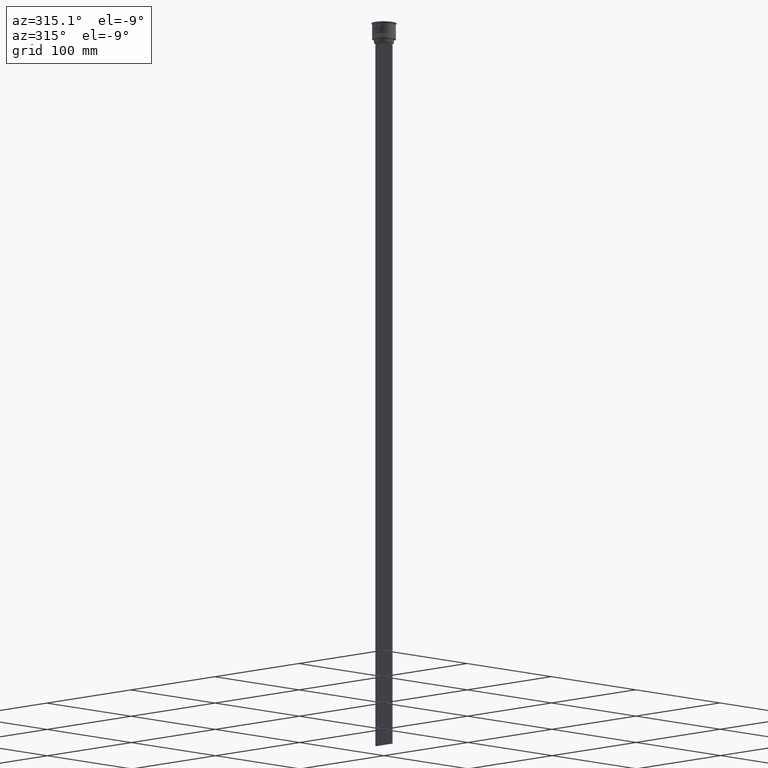
[diagram: clean part render]
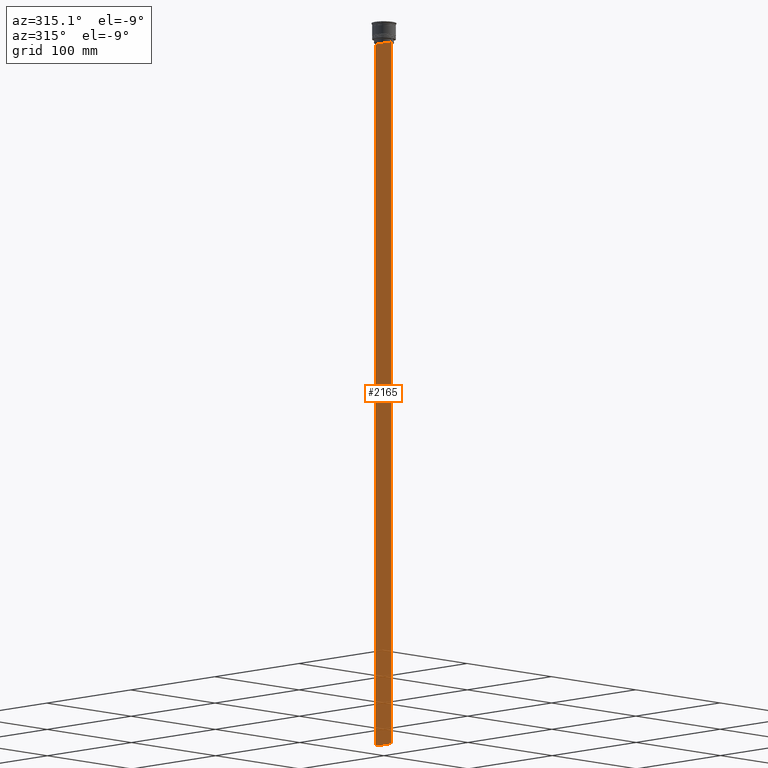
[diagram: same view with one face highlighted and labeled with its STEP entity id]
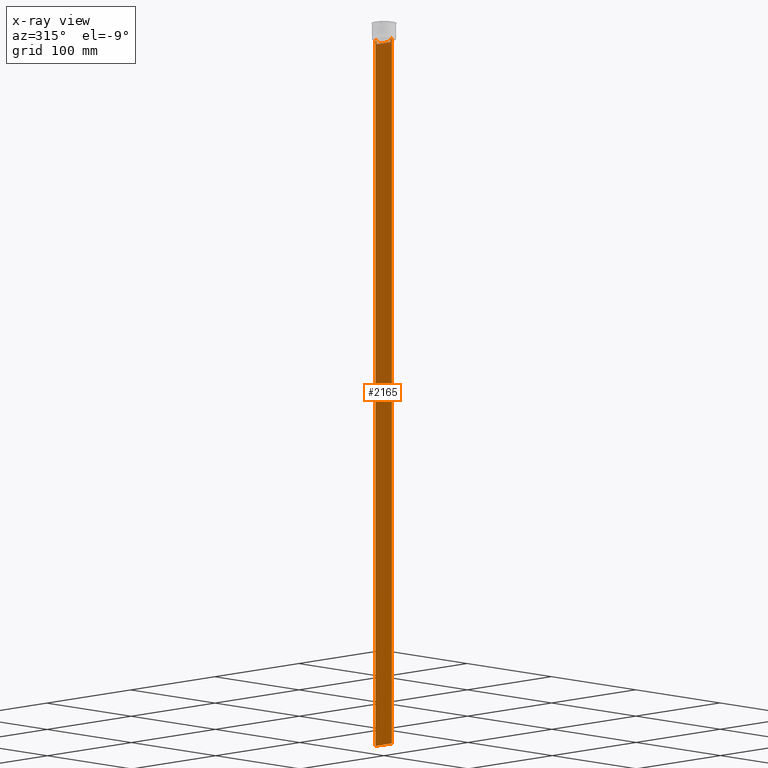
[diagram: x-ray of the same camera — body ghosted, the highlighted face saturated]
A machine part, auxiliary view. The second image highlights one B-rep face of the part: STEP entity #2165.
The next image is the same camera in x-ray: the body ghosted, the highlighted face saturated — about 0% of this face is hidden behind the body in this view.
In plain terms, the highlighted planar face has unit normal (-1, 0, 0).
Its self-contained STEP definition (entity closure, byte-faithful):
#30 = DIRECTION ( 'NONE',  ( 0.000000000000000000, 0.000000000000000000, -1.000000000000000000 ) ) ;
#43 = ORIENTED_EDGE ( 'NONE', *, *, #1404, .F. ) ;
#83 = ORIENTED_EDGE ( 'NONE', *, *, #1237, .F. ) ;
#120 = DIRECTION ( 'NONE',  ( 0.000000000000000000, -1.000000000000000000, 0.000000000000000000 ) ) ;
#140 = ORIENTED_EDGE ( 'NONE', *, *, #1252, .F. ) ;
#157 = VERTEX_POINT ( 'NONE', #2377 ) ;
#163 = EDGE_CURVE ( 'NONE', #999, #521, #2474, .T. ) ;
#173 = VECTOR ( 'NONE', #2483, 1000.000000000000000 ) ;
#213 = VECTOR ( 'NONE', #2012, 1000.000000000000000 ) ;
#241 = LINE ( 'NONE', #1218, #213 ) ;
#340 = DIRECTION ( 'NONE',  ( 0.000000000000000000, 0.000000000000000000, -1.000000000000000000 ) ) ;
#345 = VERTEX_POINT ( 'NONE', #1048 ) ;
#351 = DIRECTION ( 'NONE',  ( -1.000000000000000000, 0.000000000000000000, 0.000000000000000000 ) ) ;
#378 = EDGE_LOOP ( 'NONE', ( #1552, #1675, #775, #1065, #2316, #140, #916, #1961, #43, #83 ) ) ;
#382 = CARTESIAN_POINT ( 'NONE',  ( -0.5000000000000001110, 9.750000000000001776, 5.525624189766635830 ) ) ;
#511 = VERTEX_POINT ( 'NONE', #1964 ) ;
#521 = VERTEX_POINT ( 'NONE', #569 ) ;
#569 = CARTESIAN_POINT ( 'NONE',  ( -0.5000000000000001110, 8.385105843100616241, -14.50000000000000000 ) ) ;
#611 = CARTESIAN_POINT ( 'NONE',  ( -0.5000000000000001110, 8.885943956609230199, -14.00000000000000178 ) ) ;
#682 = AXIS2_PLACEMENT_3D ( 'NONE', #2352, #351, #1527 ) ;
#758 = CARTESIAN_POINT ( 'NONE',  ( -0.5000000000000001110, 8.885943956609230199, -14.00000000000000178 ) ) ;
#765 = VECTOR ( 'NONE', #30, 1000.000000000000000 ) ;
#769 = CARTESIAN_POINT ( 'NONE',  ( -0.5000000000000001110, 8.400000000000003908, -17.00000000000000000 ) ) ;
#775 = ORIENTED_EDGE ( 'NONE', *, *, #1465, .T. ) ;
#813 = CARTESIAN_POINT ( 'NONE',  ( -0.5000000000000001110, -8.385105843100616241, -14.50000000000000000 ) ) ;
#873 = CARTESIAN_POINT ( 'NONE',  ( -0.5000000000000001110, -9.749999999999998224, -14.00000000000000178 ) ) ;
#916 = ORIENTED_EDGE ( 'NONE', *, *, #2252, .F. ) ;
#926 = CARTESIAN_POINT ( 'NONE',  ( -0.5000000000000001110, -9.749999999999998224, -614.0000000000000000 ) ) ;
#999 = VERTEX_POINT ( 'NONE', #758 ) ;
#1023 = CARTESIAN_POINT ( 'NONE',  ( -0.5000000000000001110, 8.385105843100616241, -14.50000000000000000 ) ) ;
#1048 = CARTESIAN_POINT ( 'NONE',  ( -0.5000000000000001110, -9.749999999999998224, -614.0000000000000000 ) ) ;
#1065 = ORIENTED_EDGE ( 'NONE', *, *, #2541, .F. ) ;
#1079 = DIRECTION ( 'NONE',  ( 0.000000000000000000, 0.000000000000000000, -1.000000000000000000 ) ) ;
#1093 = EDGE_CURVE ( 'NONE', #511, #1094, #241, .T. ) ;
#1094 = VERTEX_POINT ( 'NONE', #813 ) ;
#1126 = LINE ( 'NONE', #926, #1859 ) ;
#1218 = CARTESIAN_POINT ( 'NONE',  ( -0.5000000000000001110, -8.385105843100616241, 0.000000000000000000 ) ) ;
#1237 = EDGE_CURVE ( 'NONE', #521, #2570, #1881, .T. ) ;
#1252 = EDGE_CURVE ( 'NONE', #1715, #2503, #1722, .T. ) ;
#1259 = CARTESIAN_POINT ( 'NONE',  ( -0.5000000000000001110, 8.385105843100616241, 0.000000000000000000 ) ) ;
#1308 = CARTESIAN_POINT ( 'NONE',  ( -0.5000000000000001110, -8.552060194457773434, -14.33334167772667023 ) ) ;
#1325 = CARTESIAN_POINT ( 'NONE',  ( -0.5000000000000001110, -8.385105843100616241, -14.50000000000000000 ) ) ;
#1329 = DIRECTION ( 'NONE',  ( 0.000000000000000000, -1.000000000000000000, 0.000000000000000000 ) ) ;
#1336 = CARTESIAN_POINT ( 'NONE',  ( -0.5000000000000001110, -8.885943956609230199, -14.00000000000000178 ) ) ;
#1339 = EDGE_CURVE ( 'NONE', #2503, #345, #1531, .T. ) ;
#1404 = EDGE_CURVE ( 'NONE', #2570, #511, #2547, .T. ) ;
#1437 = DIRECTION ( 'NONE',  ( 0.000000000000000000, 1.000000000000000000, 0.000000000000000000 ) ) ;
#1465 = EDGE_CURVE ( 'NONE', #2242, #157, #1599, .T. ) ;
#1480 = VECTOR ( 'NONE', #120, 1000.000000000000000 ) ;
#1517 = LINE ( 'NONE', #2296, #1944 ) ;
#1527 = DIRECTION ( 'NONE',  ( 0.000000000000000000, 0.000000000000000000, 1.000000000000000000 ) ) ;
#1531 = LINE ( 'NONE', #2135, #2094 ) ;
#1552 = ORIENTED_EDGE ( 'NONE', *, *, #163, .F. ) ;
#1599 = LINE ( 'NONE', #382, #765 ) ;
#1616 = CARTESIAN_POINT ( 'NONE',  ( -0.5000000000000001110, 8.719005771582351016, -14.16667453442324742 ) ) ;
#1675 = ORIENTED_EDGE ( 'NONE', *, *, #2538, .F. ) ;
#1715 = VERTEX_POINT ( 'NONE', #2542 ) ;
#1717 = CARTESIAN_POINT ( 'NONE',  ( -0.5000000000000001110, -8.719005764482790966, -14.16667454151159689 ) ) ;
#1722 = LINE ( 'NONE', #2042, #173 ) ;
#1742 = FACE_OUTER_BOUND ( 'NONE', #378, .T. ) ;
#1746 = CARTESIAN_POINT ( 'NONE',  ( -0.5000000000000001110, 8.385105843100616241, -17.00000000000000000 ) ) ;
#1859 = VECTOR ( 'NONE', #1437, 1000.000000000000000 ) ;
#1881 = LINE ( 'NONE', #1259, #2418 ) ;
#1944 = VECTOR ( 'NONE', #1329, 1000.000000000000000 ) ;
#1961 = ORIENTED_EDGE ( 'NONE', *, *, #1093, .F. ) ;
#1964 = CARTESIAN_POINT ( 'NONE',  ( -0.5000000000000001110, -8.385105843100616241, -17.00000000000000000 ) ) ;
#2012 = DIRECTION ( 'NONE',  ( -0.000000000000000000, -0.000000000000000000, 1.000000000000000000 ) ) ;
#2042 = CARTESIAN_POINT ( 'NONE',  ( -0.5000000000000001110, -9.749999999999998224, -14.00000000000000178 ) ) ;
#2094 = VECTOR ( 'NONE', #340, 1000.000000000000000 ) ;
#2128 = PLANE ( 'NONE',  #682 ) ;
#2135 = CARTESIAN_POINT ( 'NONE',  ( -0.5000000000000001110, -9.749999999999998224, 5.525624189766635830 ) ) ;
#2165 = ADVANCED_FACE ( 'NONE', ( #1742 ), #2128, .T. ) ;
#2242 = VERTEX_POINT ( 'NONE', #2519 ) ;
#2252 = EDGE_CURVE ( 'NONE', #1094, #1715, #2508, .T. ) ;
#2296 = CARTESIAN_POINT ( 'NONE',  ( -0.5000000000000001110, -9.749999999999998224, -14.00000000000000178 ) ) ;
#2316 = ORIENTED_EDGE ( 'NONE', *, *, #1339, .F. ) ;
#2352 = CARTESIAN_POINT ( 'NONE',  ( -0.5000000000000001110, -9.749999999999998224, 5.525624189766635830 ) ) ;
#2377 = CARTESIAN_POINT ( 'NONE',  ( -0.5000000000000001110, 9.750000000000001776, -614.0000000000000000 ) ) ;
#2400 = CARTESIAN_POINT ( 'NONE',  ( -0.5000000000000001110, 8.552060201981381837, -14.33334167021640226 ) ) ;
#2418 = VECTOR ( 'NONE', #1079, 1000.000000000000000 ) ;
#2474 = B_SPLINE_CURVE_WITH_KNOTS ( 'NONE', 3,
 ( #611, #1616, #2400, #1023 ),
 .UNSPECIFIED., .F., .F.,
 ( 4, 4 ),
 ( 0.01511546479386908018, 0.01582316445439079997 ),
 .UNSPECIFIED. ) ;
#2483 = DIRECTION ( 'NONE',  ( 0.000000000000000000, -1.000000000000000000, 0.000000000000000000 ) ) ;
#2503 = VERTEX_POINT ( 'NONE', #873 ) ;
#2508 = B_SPLINE_CURVE_WITH_KNOTS ( 'NONE', 3,
 ( #1325, #1308, #1717, #1336 ),
 .UNSPECIFIED., .F., .F.,
 ( 4, 4 ),
 ( 0.03898465126933130243, 0.03969388910599658260 ),
 .UNSPECIFIED. ) ;
#2519 = CARTESIAN_POINT ( 'NONE',  ( -0.5000000000000001110, 9.749999999999998224, -14.00000000000000178 ) ) ;
#2538 = EDGE_CURVE ( 'NONE', #2242, #999, #1517, .T. ) ;
#2541 = EDGE_CURVE ( 'NONE', #345, #157, #1126, .T. ) ;
#2542 = CARTESIAN_POINT ( 'NONE',  ( -0.5000000000000001110, -8.885943956609230199, -14.00000000000000178 ) ) ;
#2547 = LINE ( 'NONE', #769, #1480 ) ;
#2570 = VERTEX_POINT ( 'NONE', #1746 ) ;